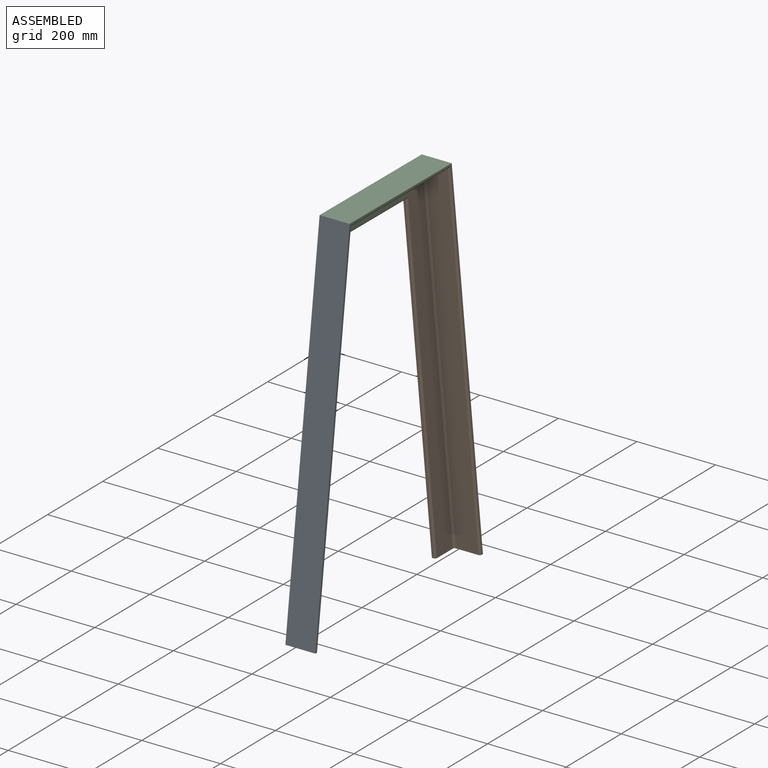
[diagram: assembled view]
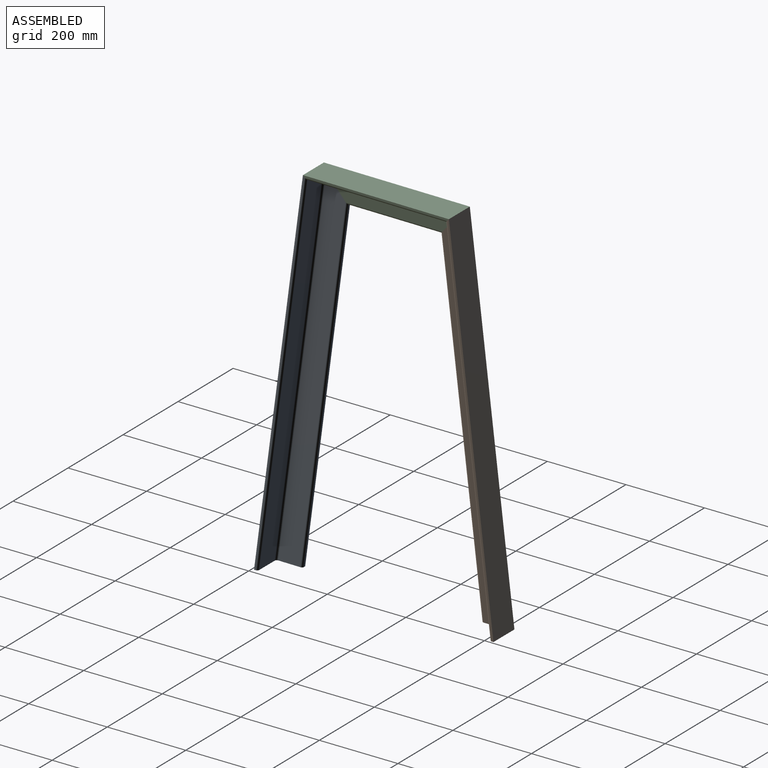
[diagram: assembled view, second angle]
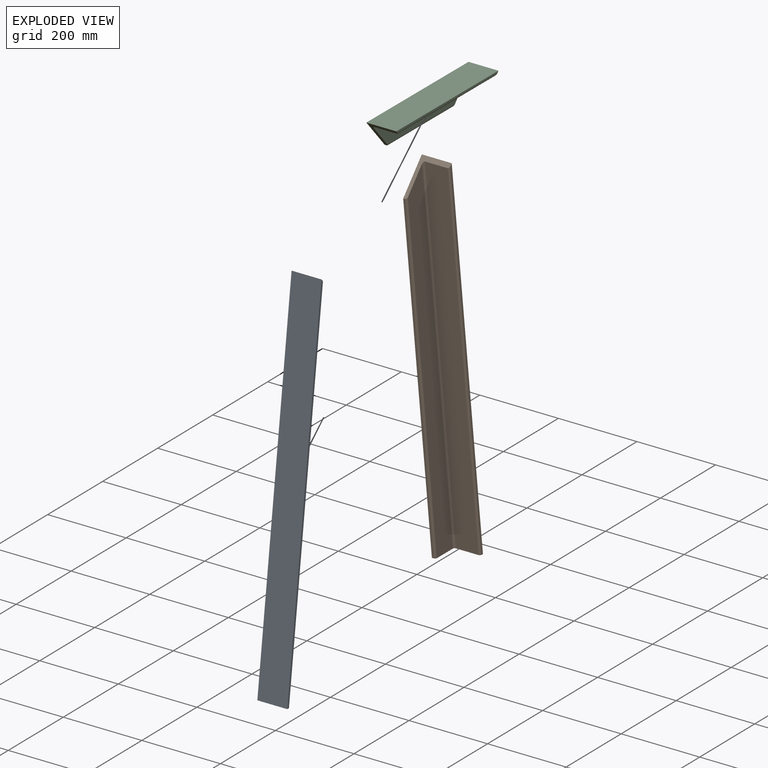
[diagram: exploded view]
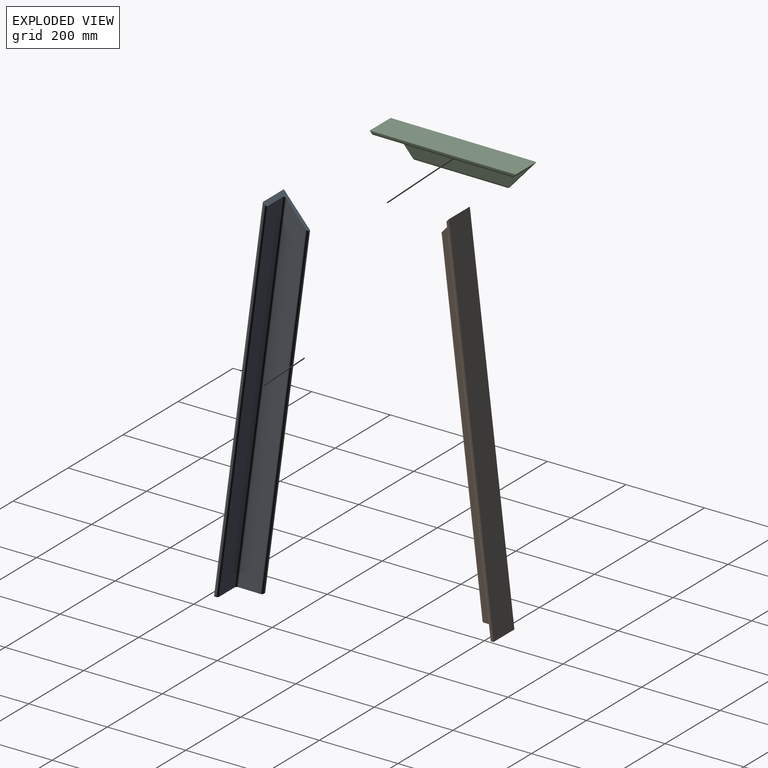
[diagram: exploded view, second angle]
ASSEMBLY  parts=3 mates=2
PART A: 11 faces, bbox 76.2x949.3x76.2 mm
  f0: plane 872.79x4.45mm, normal (0,0,1), area 3879.5mm2, adj f1,f6,f9,f10
  f1: plane 949.33x76.2mm, normal (-1,0,0), area 69422.6mm2, adj f0,f8,f9,f10
  f2: plane 949.33x4.45mm, normal (1,0,0), area 4209.8mm2, adj f7,f8,f9,f10
  f3: plane 939.76x56.52mm, normal (0,0,1), area 53110.4mm2, adj f5,f7,f9,f10
  f4: plane 934.66x56.52mm, normal (1,0,0), area 51218.1mm2, adj f5,f6,f9,f10
  f5: cylinder r=5.08mm len=939.76mm, axis (0,1,0), area 7484.1mm2, adj f3,f4,f9,f10
  f6: cylinder r=5.08mm len=877.89mm, axis (0,-1,0), area 6979.3mm2, adj f0,f4,f9,f10
  f7: cylinder r=5.08mm len=944.86mm, axis (0,-1,0), area 7513.7mm2, adj f2,f3,f9,f10
  f8: plane 949.33x76.2mm, normal (0,0,-1), area 72338.6mm2, adj f1,f2,f9,f10
  f9: plane 76.2x76.2mm, normal (0,0.99,0.12), area 1365.5mm2, adj f0,f1,f2,f3,f4,f5,f6,f7
  f10: plane 76.2x76.2mm, normal (0,-0.75,0.66), area 1806.9mm2, adj f0,f1,f2,f3,f4,f5,f6,f7
PART B: 11 faces, bbox 76.2x949.3x76.2 mm
  f0: plane 872.79x4.45mm, normal (0,0,1), area 3879.5mm2, adj f1,f6,f9,f10
  f1: plane 949.33x76.2mm, normal (-1,0,0), area 69422.6mm2, adj f0,f8,f9,f10
  f2: plane 949.33x4.45mm, normal (1,0,0), area 4209.8mm2, adj f7,f8,f9,f10
  f3: plane 939.76x56.52mm, normal (0,0,1), area 53110.4mm2, adj f5,f7,f9,f10
  f4: plane 934.66x56.52mm, normal (1,0,0), area 51218.1mm2, adj f5,f6,f9,f10
  f5: cylinder r=5.08mm len=939.76mm, axis (0,1,0), area 7484.1mm2, adj f3,f4,f9,f10
  f6: cylinder r=5.08mm len=877.89mm, axis (0,-1,0), area 6979.3mm2, adj f0,f4,f9,f10
  f7: cylinder r=5.08mm len=944.86mm, axis (0,-1,0), area 7513.7mm2, adj f2,f3,f9,f10
  f8: plane 949.33x76.2mm, normal (0,0,-1), area 72338.6mm2, adj f1,f2,f9,f10
  f9: plane 76.2x76.2mm, normal (0,-0.99,0.12), area 1365.5mm2, adj f0,f1,f2,f3,f4,f5,f6,f7
  f10: plane 76.2x76.2mm, normal (0,0.75,0.66), area 1806.9mm2, adj f0,f1,f2,f3,f4,f5,f6,f7
PART C: 11 faces, bbox 76.2x371.5x76.2 mm
  f0: plane 237.12x4.45mm, normal (0,0,1), area 1054mm2, adj f1,f6,f7,f9
  f1: plane 371.48x76.2mm, normal (-1,0,0), area 23187.3mm2, adj f0,f5,f6,f7
  f2: plane 371.48x4.45mm, normal (1,0,0), area 1633.8mm2, adj f5,f6,f7,f10
  f3: plane 354.68x56.52mm, normal (0,0,1), area 20044.7mm2, adj f6,f7,f8,f10
  f4: plane 345.72x56.52mm, normal (1,0,0), area 16722.7mm2, adj f6,f7,f8,f9
  f5: plane 371.48x76.2mm, normal (0,0,-1), area 28306.4mm2, adj f1,f2,f6,f7
  f6: plane 76.2x76.2mm, normal (0,-0.75,0.66), area 1806.9mm2, adj f0,f1,f2,f3,f4,f5,f8,f9
  f7: plane 76.2x76.2mm, normal (0,0.75,0.66), area 1806.9mm2, adj f0,f1,f2,f3,f4,f5,f8,f9
  f8: cylinder r=5.08mm len=354.68mm, axis (0,1,0), area 2804.2mm2, adj f3,f4,f6,f7
  f9: cylinder r=5.08mm len=246.07mm, axis (0,-1,0), area 1918.1mm2, adj f0,f4,f6,f7
  f10: cylinder r=5.08mm len=363.64mm, axis (0,-1,0), area 2856.2mm2, adj f2,f3,f6,f7
PLACE A rot(axis=(-1,0,0),97.5deg) t=(318.37,-986.89,-221.27)mm
PLACE B rot(axis=(1,0,0),96.9deg) t=(319.76,-496.44,-224.12)mm
PLACE C rot(axis=(1,0,0),179.7deg) t=(319.76,-738.92,248.22)mm
MATE fastened C.f7 <-> A.f10  axis (0,-0.75,-0.66) through (319.76,-924.66,249.3)mm
MATE fastened B.f10 <-> C.f6  axis (0,-0.75,0.67) through (319.76,-553.19,247.14)mm
